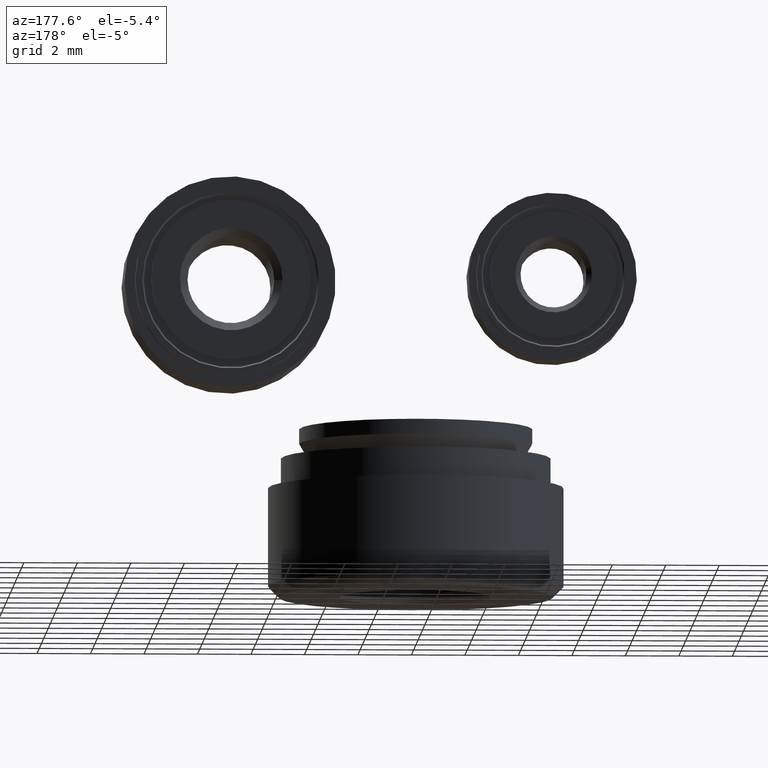
[diagram: clean part render]
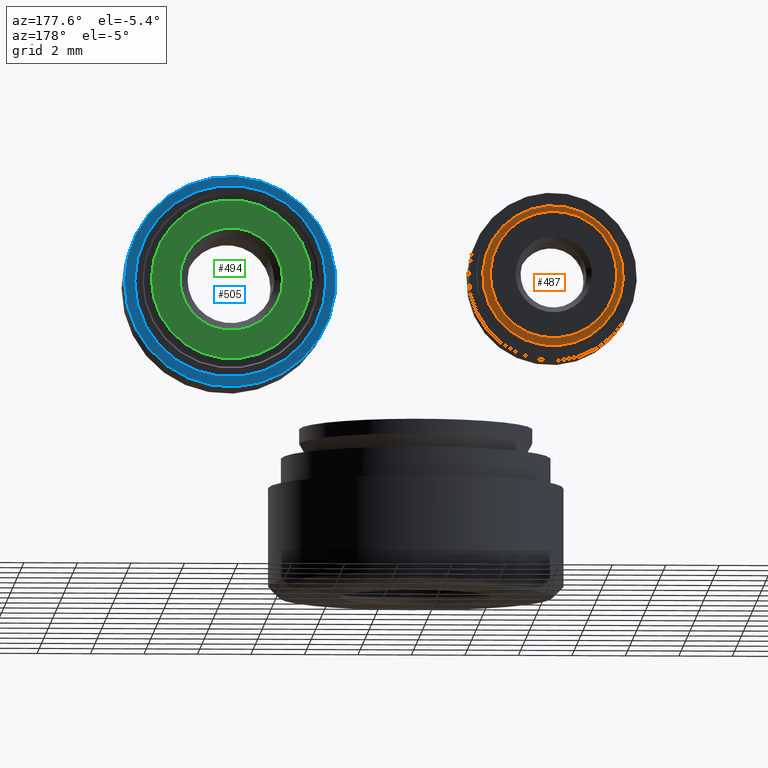
[diagram: same view with three faces highlighted in distinct colors, each labeled with its STEP entity id]
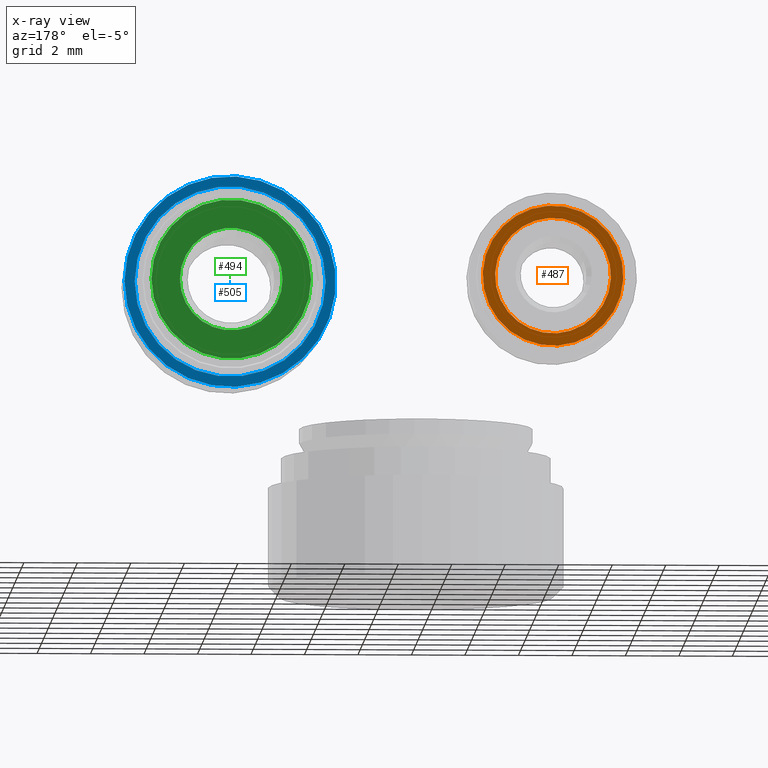
[diagram: x-ray of the same camera — body ghosted, the three highlighted faces saturated]
A machine part, auxiliary view with three faces highlighted in distinct colors.
The next image is the same camera in x-ray (body ghosted, the three faces saturated) — at least one of them is partly hidden behind the body in this view.
Their STEP definitions:

[orange] entity #487 — the highlighted planar face has unit normal (-0, 1, 0).
#51=PLANE('',#558);
#94=FACE_BOUND('',#202,.T.);
#136=FACE_OUTER_BOUND('',#201,.T.);
#201=EDGE_LOOP('',(#411));
#202=EDGE_LOOP('',(#412));
#262=CIRCLE('',#557,2.16581415712958);
#263=CIRCLE('',#559,2.62769437248128);
#304=VERTEX_POINT('',#853);
#305=VERTEX_POINT('',#856);
#346=EDGE_CURVE('',#304,#304,#262,.T.);
#347=EDGE_CURVE('',#305,#305,#263,.T.);
#411=ORIENTED_EDGE('',*,*,#347,.F.);
#412=ORIENTED_EDGE('',*,*,#346,.T.);
#487=ADVANCED_FACE('',(#136,#94),#51,.T.);
#557=AXIS2_PLACEMENT_3D('',#854,#696,#697);
#558=AXIS2_PLACEMENT_3D('',#855,#698,#699);
#559=AXIS2_PLACEMENT_3D('',#857,#700,#701);
#696=DIRECTION('center_axis',(0.,0.,-1.));
#697=DIRECTION('ref_axis',(-1.,0.,0.));
#698=DIRECTION('center_axis',(0.,0.,1.));
#699=DIRECTION('ref_axis',(1.,0.,0.));
#700=DIRECTION('center_axis',(0.,0.,-1.));
#701=DIRECTION('ref_axis',(-1.,0.,0.));
#853=CARTESIAN_POINT('',(2.16581415712958,-2.65235737507676E-16,2.39));
#854=CARTESIAN_POINT('Origin',(0.,0.,2.39));
#855=CARTESIAN_POINT('Origin',(-2.39675426480543,0.,2.39));
#856=CARTESIAN_POINT('',(2.62769437248128,-3.21799750239671E-16,2.39));
#857=CARTESIAN_POINT('Origin',(0.,0.,2.39));

[blue] entity #505 — the highlighted planar face has unit normal (0, 1, 0).
#58=PLANE('',#595);
#112=FACE_BOUND('',#238,.T.);
#154=FACE_OUTER_BOUND('',#237,.T.);
#237=EDGE_LOOP('',(#447));
#238=EDGE_LOOP('',(#448));
#274=CIRCLE('',#581,3.95);
#280=CIRCLE('',#594,3.5675);
#316=VERTEX_POINT('',#889);
#322=VERTEX_POINT('',#908);
#358=EDGE_CURVE('',#316,#316,#274,.T.);
#364=EDGE_CURVE('',#322,#322,#280,.T.);
#447=ORIENTED_EDGE('',*,*,#358,.F.);
#448=ORIENTED_EDGE('',*,*,#364,.T.);
#505=ADVANCED_FACE('',(#154,#112),#58,.T.);
#581=AXIS2_PLACEMENT_3D('',#890,#744,#745);
#594=AXIS2_PLACEMENT_3D('',#909,#770,#771);
#595=AXIS2_PLACEMENT_3D('',#910,#772,#773);
#744=DIRECTION('center_axis',(0.,0.,-1.));
#745=DIRECTION('ref_axis',(-1.,0.,0.));
#770=DIRECTION('center_axis',(0.,0.,-1.));
#771=DIRECTION('ref_axis',(-1.,0.,0.));
#772=DIRECTION('center_axis',(0.,0.,1.));
#773=DIRECTION('ref_axis',(1.,0.,0.));
#889=CARTESIAN_POINT('',(3.95,-4.83735485663205E-16,3.));
#890=CARTESIAN_POINT('Origin',(0.,0.,3.));
#908=CARTESIAN_POINT('',(3.5675,-4.36892745595818E-16,3.));
#909=CARTESIAN_POINT('Origin',(0.,0.,3.));
#910=CARTESIAN_POINT('Origin',(-3.75875,0.,3.));

[green] entity #494 — the highlighted planar face has unit normal (0, 1, 0).
#54=PLANE('',#573);
#101=FACE_BOUND('',#216,.T.);
#143=FACE_OUTER_BOUND('',#215,.T.);
#215=EDGE_LOOP('',(#425));
#216=EDGE_LOOP('',(#426));
#268=CIRCLE('',#570,1.921);
#270=CIRCLE('',#574,2.985);
#310=VERTEX_POINT('',#872);
#312=VERTEX_POINT('',#878);
#352=EDGE_CURVE('',#310,#310,#268,.T.);
#354=EDGE_CURVE('',#312,#312,#270,.T.);
#425=ORIENTED_EDGE('',*,*,#354,.F.);
#426=ORIENTED_EDGE('',*,*,#352,.F.);
#494=ADVANCED_FACE('',(#143,#101),#54,.T.);
#570=AXIS2_PLACEMENT_3D('',#873,#722,#723);
#573=AXIS2_PLACEMENT_3D('',#877,#728,#729);
#574=AXIS2_PLACEMENT_3D('',#879,#730,#731);
#722=DIRECTION('center_axis',(0.,0.,1.));
#723=DIRECTION('ref_axis',(-1.,0.,0.));
#728=DIRECTION('center_axis',(0.,0.,1.));
#729=DIRECTION('ref_axis',(1.,0.,0.));
#730=DIRECTION('center_axis',(0.,0.,-1.));
#731=DIRECTION('ref_axis',(-1.,0.,0.));
#872=CARTESIAN_POINT('',(1.921,2.35254650116207E-16,3.98));
#873=CARTESIAN_POINT('Origin',(0.,0.,3.98));
#877=CARTESIAN_POINT('Origin',(-1.4925,0.,3.98));
#878=CARTESIAN_POINT('',(2.985,-3.65557069545485E-16,3.98));
#879=CARTESIAN_POINT('Origin',(0.,0.,3.98));